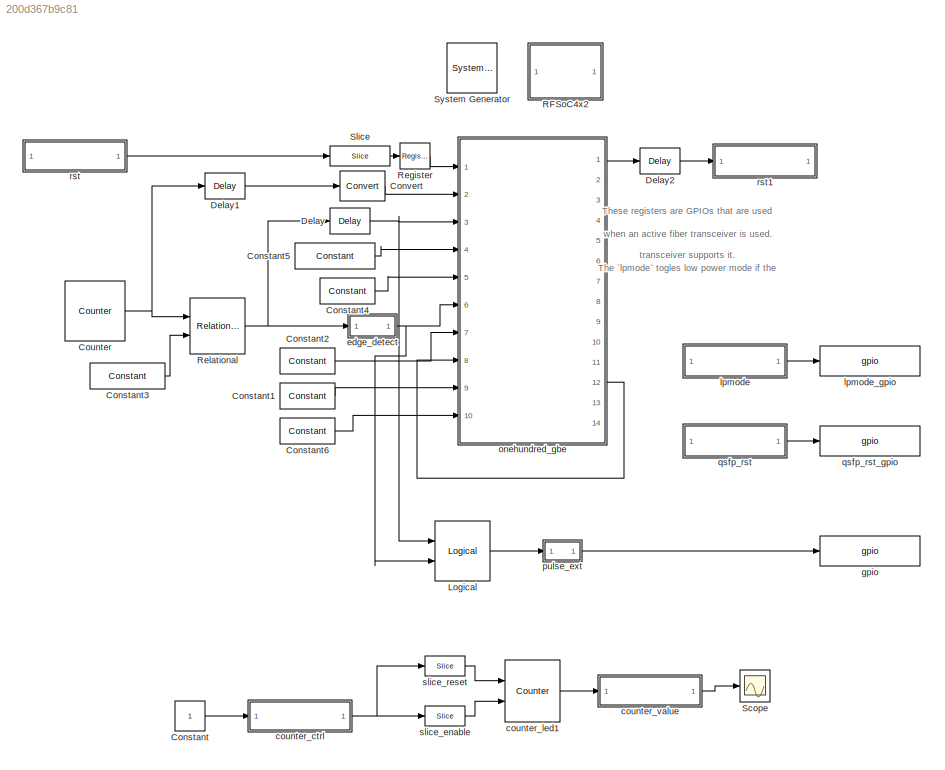
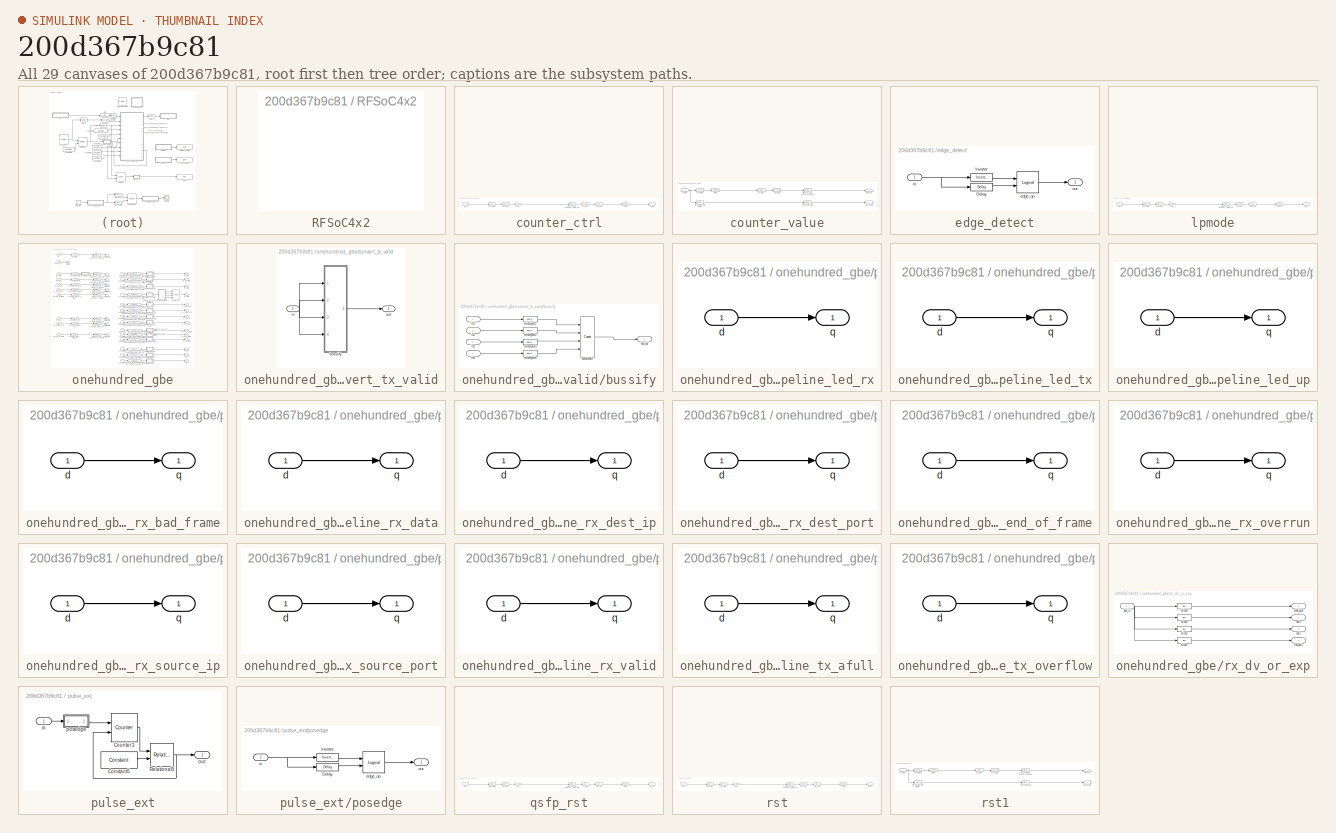
[diagram: thumbnail index - all 29 canvases of the model, root first then tree order]
MODEL slx_200d367b9c81
KIND model
CONFIG AbsTol = auto
CONFIG EnableMultiTasking = off
CONFIG FixedStep = auto
CONFIG MaxStep = auto
CONFIG MinStep = auto
CONFIG RelTol = 1e-3
CONFIG SampleTimeConstraint = Unconstrained
CONFIG SolverName = VariableStepAuto
CONFIG StartTime = 0.0
CONFIG StopTime = 10.0
BLOCK [Reference]  System Generator  REF=xbsIndex_r4/ System Generator
  AttributesFormatString = System\nGenerator
  Ports = []
  SourceBlock = xbsIndex_r4/ System Generator
  SourceType = Xilinx System Generator Block
  Tag = genX
  UserDataPersistent = on
BLOCK [Constant] Constant
BLOCK [Reference] Constant1  REF=xbsIndex_r4/Constant
  Ports = [0, 1]
  SourceBlock = xbsIndex_r4/Constant
  SourceType = Xilinx Constant Block Block
BLOCK [Reference] Constant2  REF=xbsIndex_r4/Constant
  Ports = [0, 1]
  SourceBlock = xbsIndex_r4/Constant
  SourceType = Xilinx Constant Block Block
BLOCK [Reference] Constant3  REF=xbsIndex_r4/Constant
  Ports = [0, 1]
  SourceBlock = xbsIndex_r4/Constant
  SourceType = Xilinx Constant Block Block
BLOCK [Reference] Constant4  REF=xbsIndex_r4/Constant
  Ports = [0, 1]
  SourceBlock = xbsIndex_r4/Constant
  SourceType = Xilinx Constant Block Block
BLOCK [Reference] Constant5  REF=xbsIndex_r4/Constant
  Ports = [0, 1]
  SourceBlock = xbsIndex_r4/Constant
  SourceType = Xilinx Constant Block Block
BLOCK [Reference] Constant6  REF=xbsIndex_r4/Constant
  Ports = [0, 1]
  SourceBlock = xbsIndex_r4/Constant
  SourceType = Xilinx Constant Block Block
BLOCK [Reference] Convert  REF=xbsIndex_r4/Convert
  Ports = [1, 1]
  SourceBlock = xbsIndex_r4/Convert
  SourceType = Xilinx Type Converter Block
BLOCK [Reference] Counter  REF=xbsIndex_r4/Counter
  Ports = [0, 1]
  SourceBlock = xbsIndex_r4/Counter
  SourceType = Xilinx Counter Block
BLOCK [Reference] Delay  REF=xbsIndex_r4/Delay
  Ports = [1, 1]
  SourceBlock = xbsIndex_r4/Delay
  SourceType = Xilinx Delay Block
BLOCK [Reference] Delay1  REF=xbsIndex_r4/Delay
  Ports = [1, 1]
  SourceBlock = xbsIndex_r4/Delay
  SourceType = Xilinx Delay Block
BLOCK [Reference] Delay2  REF=xbsIndex_r4/Delay
  Ports = [1, 1]
  SourceBlock = xbsIndex_r4/Delay
  SourceType = Xilinx Delay Block
BLOCK [Reference] Logical  REF=xbsIndex_r4/Logical
  Ports = [2, 1]
  SourceBlock = xbsIndex_r4/Logical
  SourceType = Xilinx Logical Block Block
BLOCK [SubSystem] RFSoC4x2
  AncestorBlock = xps_library/Platforms/ZCU216
  Ports = []
  RequestExecContextInheritance = off
  Tag = xps:xsg
BLOCK [Reference] Register  REF=xbsIndex_r4/Register
  Ports = [1, 1]
  SourceBlock = xbsIndex_r4/Register
  SourceType = Xilinx Register Block
BLOCK [Reference] Relational  REF=xbsIndex_r4/Relational
  Ports = [2, 1]
  SourceBlock = xbsIndex_r4/Relational
  SourceType = Xilinx Arithmetic Relational Operator Block
BLOCK [Scope] Scope
  Floating = off
  NumInputPorts = 1
  Ports = [1]
  ScopeSpecificationString = Simulink.scopes.TimeScopeBlockCfg('CurrentConfiguration', extmgr.ConfigurationSet(extmgr.Configuration('Core','General UI',true),extmgr.Configuration('Core','Source UI',true),extmgr.Configuration('Sources','WiredSimulink',true,'DataLoggingLimitDataPoints',true,'DataLoggingSaveFormat','Array','DataLoggingDecimation','1','DataLoggingDecimateData',true),extmgr.Configuration('Visuals','Time Domain',tr...<+126ch>
BLOCK [Reference] Slice  REF=xbsIndex_r4/Slice
  Ports = [1, 1]
  SourceBlock = xbsIndex_r4/Slice
  SourceType = Xilinx Bit Slice Extractor Block
BLOCK [SubSystem] counter_ctrl
  AncestorBlock = xps_library/Memory/software_register
  AttributesFormatString = 1input
  Ports = [1, 1]
  RequestExecContextInheritance = off
  Tag = xps:sw_reg
BLOCK [DataTypeConversion] counter_ctrl/convert1_1
  LockScale = on
  OutDataTypeStr = fixdt('ufix32_En0')
  RndMeth = Floor
  SaturateOnIntegerOverflow = off
BLOCK [DataTypeConversion] counter_ctrl/convert2_1
  ConvertRealWorld = Stored Integer (SI)
  LockScale = on
  OutDataTypeStr = fixdt('ufix32_En0')
  RndMeth = Floor
  SaturateOnIntegerOverflow = off
BLOCK [Gain] counter_ctrl/gain_1
  OutDataTypeStr = fixdt('ufix32_En0')
BLOCK [Outport] counter_ctrl/in_reg
  VectorParamsAs1DForOutWhenUnconnected = off
BLOCK [Reference] counter_ctrl/io_delay  REF=xbsIndex_r4/Delay
  Ports = [1, 1]
  SourceBlock = xbsIndex_r4/Delay
  SourceType = Xilinx Delay Block
BLOCK [Reference] counter_ctrl/reint1  REF=xbsIndex_r4/Reinterpret
  Ports = [1, 1]
  SourceBlock = xbsIndex_r4/Reinterpret
  SourceType = Xilinx Type Reinterpreter Block
BLOCK [Reference] counter_ctrl/rfsoc4x2_tut_onehundred_gbe_counter_ctrl_user_data_out  REF=xbsIndex_r4/Gateway In
  Ports = [1, 1]
  SourceBlock = xbsIndex_r4/Gateway In
  SourceType = Xilinx Gateway In Block
BLOCK [Inport] counter_ctrl/sim_1
BLOCK [Reference] counter_ctrl/slice_reg  REF=xbsIndex_r4/Slice
  Ports = [1, 1]
  SourceBlock = xbsIndex_r4/Slice
  SourceType = Xilinx Bit Slice Extractor Block
BLOCK [Reference] counter_led1  REF=xbsIndex_r4/Counter
  Ports = [2, 1]
  SourceBlock = xbsIndex_r4/Counter
  SourceType = Xilinx Counter Block
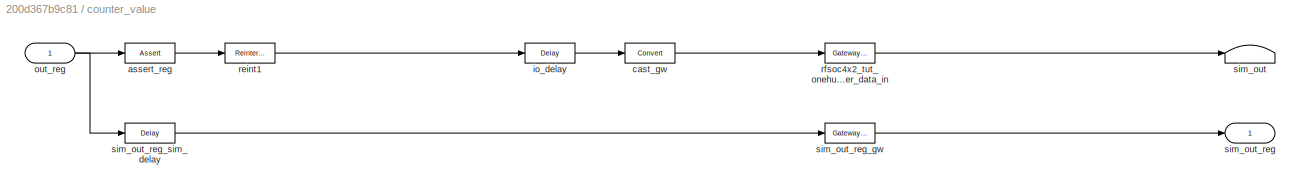
BLOCK [SubSystem] counter_value
  AncestorBlock = xps_library/Memory/software_register
  AttributesFormatString = 1output
  Ports = [1, 1]
  RequestExecContextInheritance = off
  Tag = xps:sw_reg
BLOCK [Reference] counter_value/assert_reg  REF=xbsIndex_r4/Assert
  Ports = [1, 1]
  SourceBlock = xbsIndex_r4/Assert
  SourceType = Xilinx Assert Block
BLOCK [Reference] counter_value/cast_gw  REF=xbsIndex_r4/Convert
  Ports = [1, 1]
  SourceBlock = xbsIndex_r4/Convert
  SourceType = Xilinx Type Converter Block
BLOCK [Reference] counter_value/io_delay  REF=xbsIndex_r4/Delay
  Ports = [1, 1]
  SourceBlock = xbsIndex_r4/Delay
  SourceType = Xilinx Delay Block
BLOCK [Inport] counter_value/out_reg
BLOCK [Reference] counter_value/reint1  REF=xbsIndex_r4/Reinterpret
  Ports = [1, 1]
  SourceBlock = xbsIndex_r4/Reinterpret
  SourceType = Xilinx Type Reinterpreter Block
BLOCK [Reference] counter_value/rfsoc4x2_tut_onehundred_gbe_counter_value_user_data_in  REF=xbsIndex_r4/Gateway Out
  Ports = [1, 1]
  SourceBlock = xbsIndex_r4/Gateway Out
  SourceType = Xilinx Gateway Out Block
BLOCK [Terminator] counter_value/sim_out
BLOCK [Outport] counter_value/sim_out_reg
  VectorParamsAs1DForOutWhenUnconnected = off
BLOCK [Reference] counter_value/sim_out_reg_gw  REF=xbsIndex_r4/Gateway Out
  Ports = [1, 1]
  SourceBlock = xbsIndex_r4/Gateway Out
  SourceType = Xilinx Gateway Out Block
BLOCK [Reference] counter_value/sim_out_reg_sim_delay  REF=xbsIndex_r4/Delay
  Ports = [1, 1]
  SourceBlock = xbsIndex_r4/Delay
  SourceType = Xilinx Delay Block
BLOCK [SubSystem] edge_detect
  AncestorBlock = casper_library_misc/edge_detect
  AttributesFormatString = falling edges\nactive high
  Ports = [1, 1]
  RequestExecContextInheritance = off
  UserDataPersistent = on
BLOCK [Reference] edge_detect/Delay  REF=xbsIndex_r4/Delay
  Ports = [1, 1]
  SourceBlock = xbsIndex_r4/Delay
  SourceType = Xilinx Delay Block
BLOCK [Reference] edge_detect/Inverter  REF=xbsIndex_r4/Inverter
  Ports = [1, 1]
  SourceBlock = xbsIndex_r4/Inverter
  SourceType = Xilinx Inverter Block
BLOCK [Reference] edge_detect/edge_op  REF=xbsIndex_r4/Logical
  Ports = [2, 1]
  SourceBlock = xbsIndex_r4/Logical
  SourceType = Xilinx Logical Block Block
BLOCK [Inport] edge_detect/in
BLOCK [Outport] edge_detect/out
  VectorParamsAs1DForOutWhenUnconnected = off
BLOCK [Reference] gpio  REF=xps_library/IO/gpio  (lib defined in mdl_00b5cec29cd0, mdl_02ab6ecaa3d1, +5 more)
  Ports = [1, 1]
  SourceBlock = xps_library/IO/gpio
  SourceProductName = CASPER XPS Blockset
  SourceType = gpio
  Tag = xps:gpio
BLOCK [SubSystem] lpmode
  AncestorBlock = xps_library/Memory/software_register
  AttributesFormatString = 1input:uf1.0 = 1 bits
  Ports = [1, 1]
  RequestExecContextInheritance = off
  Tag = xps:sw_reg
BLOCK [DataTypeConversion] lpmode/convert1_1
  LockScale = on
  OutDataTypeStr = fixdt('ufix1_En0')
  RndMeth = Floor
  SaturateOnIntegerOverflow = off
BLOCK [DataTypeConversion] lpmode/convert2_1
  ConvertRealWorld = Stored Integer (SI)
  LockScale = on
  OutDataTypeStr = fixdt('ufix1_En0')
  RndMeth = Floor
  SaturateOnIntegerOverflow = off
BLOCK [Gain] lpmode/gain_1
  OutDataTypeStr = fixdt('ufix32_En0')
BLOCK [Outport] lpmode/in_reg
BLOCK [Reference] lpmode/io_delay  REF=xbsIndex_r4/Delay
  Ports = [1, 1]
  SourceBlock = xbsIndex_r4/Delay
  SourceType = Xilinx Delay Block
BLOCK [Reference] lpmode/reint1  REF=xbsIndex_r4/Reinterpret
  Ports = [1, 1]
  SourceBlock = xbsIndex_r4/Reinterpret
  SourceType = Xilinx Type Reinterpreter Block
BLOCK [Reference] lpmode/rfsoc4x2_tut_onehundred_gbe_lpmode_user_data_out  REF=xbsIndex_r4/Gateway In
  Ports = [1, 1]
  SourceBlock = xbsIndex_r4/Gateway In
  SourceType = Xilinx Gateway In Block
BLOCK [Inport] lpmode/sim_1
BLOCK [Reference] lpmode/slice_reg  REF=xbsIndex_r4/Slice
  Ports = [1, 1]
  SourceBlock = xbsIndex_r4/Slice
  SourceType = Xilinx Bit Slice Extractor Block
BLOCK [Reference] lpmode_gpio  REF=xps_library/IO/gpio  (lib defined in mdl_00b5cec29cd0, mdl_02ab6ecaa3d1, +5 more)
  Ports = [1, 1]
  SourceBlock = xps_library/IO/gpio
  SourceProductName = CASPER XPS Blockset
  SourceType = gpio
  Tag = xps:gpio
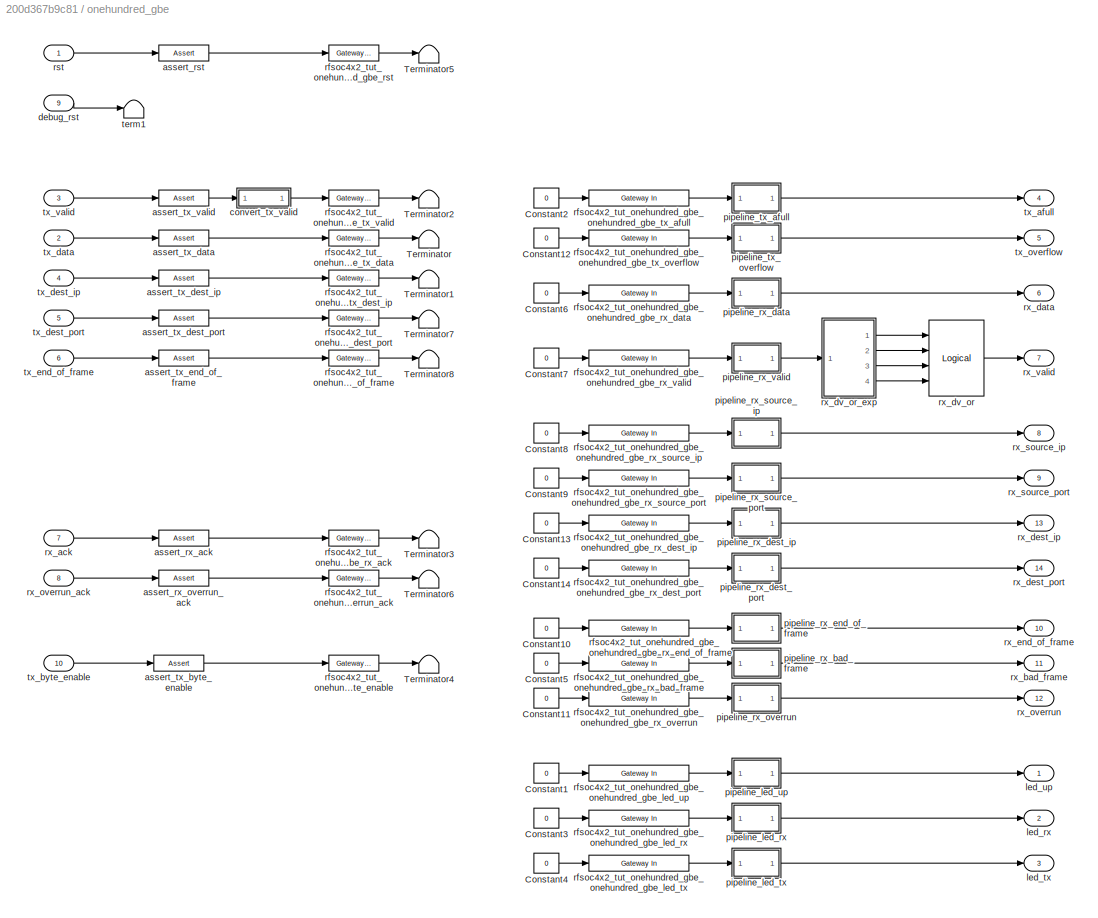
BLOCK [SubSystem] onehundred_gbe
  AncestorBlock = xps_library/IO/onehundred_gbe
  AttributesFormatString = incoming_latency=0
  Ports = [10, 14]
  RequestExecContextInheritance = off
  Tag = xps:onehundred_gbe
BLOCK [Constant] onehundred_gbe/Constant1
  Value = 0
BLOCK [Constant] onehundred_gbe/Constant10
  Value = 0
BLOCK [Constant] onehundred_gbe/Constant11
  Value = 0
BLOCK [Constant] onehundred_gbe/Constant12
  Value = 0
BLOCK [Constant] onehundred_gbe/Constant13
  Value = 0
BLOCK [Constant] onehundred_gbe/Constant14
  Value = 0
BLOCK [Constant] onehundred_gbe/Constant2
  Value = 0
BLOCK [Constant] onehundred_gbe/Constant3
  Value = 0
BLOCK [Constant] onehundred_gbe/Constant4
  Value = 0
BLOCK [Constant] onehundred_gbe/Constant5
  Value = 0
BLOCK [Constant] onehundred_gbe/Constant6
  Value = 0
BLOCK [Constant] onehundred_gbe/Constant7
  Value = 0
BLOCK [Constant] onehundred_gbe/Constant8
  Value = 0
BLOCK [Constant] onehundred_gbe/Constant9
  Value = 0
BLOCK [Terminator] onehundred_gbe/Terminator
BLOCK [Terminator] onehundred_gbe/Terminator1
BLOCK [Terminator] onehundred_gbe/Terminator2
BLOCK [Terminator] onehundred_gbe/Terminator3
BLOCK [Terminator] onehundred_gbe/Terminator4
BLOCK [Terminator] onehundred_gbe/Terminator5
BLOCK [Terminator] onehundred_gbe/Terminator6
BLOCK [Terminator] onehundred_gbe/Terminator7
BLOCK [Terminator] onehundred_gbe/Terminator8
BLOCK [Reference] onehundred_gbe/assert_rst  REF=xbsIndex_r4/Assert
  Ports = [1, 1]
  SourceBlock = xbsIndex_r4/Assert
  SourceType = Xilinx Assert Block
BLOCK [Reference] onehundred_gbe/assert_rx_ack  REF=xbsIndex_r4/Assert
  Ports = [1, 1]
  SourceBlock = xbsIndex_r4/Assert
  SourceType = Xilinx Assert Block
BLOCK [Reference] onehundred_gbe/assert_rx_overrun_ack  REF=xbsIndex_r4/Assert
  Ports = [1, 1]
  SourceBlock = xbsIndex_r4/Assert
  SourceType = Xilinx Assert Block
BLOCK [Reference] onehundred_gbe/assert_tx_byte_enable  REF=xbsIndex_r4/Assert
  Ports = [1, 1]
  SourceBlock = xbsIndex_r4/Assert
  SourceType = Xilinx Assert Block
BLOCK [Reference] onehundred_gbe/assert_tx_data  REF=xbsIndex_r4/Assert
  Ports = [1, 1]
  SourceBlock = xbsIndex_r4/Assert
  SourceType = Xilinx Assert Block
BLOCK [Reference] onehundred_gbe/assert_tx_dest_ip  REF=xbsIndex_r4/Assert
  Ports = [1, 1]
  SourceBlock = xbsIndex_r4/Assert
  SourceType = Xilinx Assert Block
BLOCK [Reference] onehundred_gbe/assert_tx_dest_port  REF=xbsIndex_r4/Assert
  Ports = [1, 1]
  SourceBlock = xbsIndex_r4/Assert
  SourceType = Xilinx Assert Block
BLOCK [Reference] onehundred_gbe/assert_tx_end_of_frame  REF=xbsIndex_r4/Assert
  Ports = [1, 1]
  SourceBlock = xbsIndex_r4/Assert
  SourceType = Xilinx Assert Block
BLOCK [Reference] onehundred_gbe/assert_tx_valid  REF=xbsIndex_r4/Assert
  Ports = [1, 1]
  SourceBlock = xbsIndex_r4/Assert
  SourceType = Xilinx Assert Block
BLOCK [SubSystem] onehundred_gbe/convert_tx_valid
  AncestorBlock = casper_library_bus/bus_replicate
  Ports = [1, 1]
  RequestExecContextInheritance = off
  UserDataPersistent = on
BLOCK [SubSystem] onehundred_gbe/convert_tx_valid/bussify
  AncestorBlock = casper_library_flow_control/bus_create
  Ports = [4, 1]
  RequestExecContextInheritance = off
  UserDataPersistent = on
BLOCK [Outport] onehundred_gbe/convert_tx_valid/bussify/bus_out
  VectorParamsAs1DForOutWhenUnconnected = off
BLOCK [Reference] onehundred_gbe/convert_tx_valid/bussify/concatenate  REF=xbsIndex_r4/Concat
  Ports = [4, 1]
  SourceBlock = xbsIndex_r4/Concat
  SourceType = Xilinx Bus Concatenator Block
BLOCK [Inport] onehundred_gbe/convert_tx_valid/bussify/in1
BLOCK [Inport] onehundred_gbe/convert_tx_valid/bussify/in2
  Port = 2
BLOCK [Inport] onehundred_gbe/convert_tx_valid/bussify/in3
  Port = 3
BLOCK [Inport] onehundred_gbe/convert_tx_valid/bussify/in4
  Port = 4
BLOCK [Reference] onehundred_gbe/convert_tx_valid/bussify/reinterpret1  REF=xbsIndex_r4/Reinterpret
  Ports = [1, 1]
  SourceBlock = xbsIndex_r4/Reinterpret
  SourceType = Xilinx Type Reinterpreter Block
BLOCK [Reference] onehundred_gbe/convert_tx_valid/bussify/reinterpret2  REF=xbsIndex_r4/Reinterpret
  Ports = [1, 1]
  SourceBlock = xbsIndex_r4/Reinterpret
  SourceType = Xilinx Type Reinterpreter Block
BLOCK [Reference] onehundred_gbe/convert_tx_valid/bussify/reinterpret3  REF=xbsIndex_r4/Reinterpret
  Ports = [1, 1]
  SourceBlock = xbsIndex_r4/Reinterpret
  SourceType = Xilinx Type Reinterpreter Block
BLOCK [Reference] onehundred_gbe/convert_tx_valid/bussify/reinterpret4  REF=xbsIndex_r4/Reinterpret
  Ports = [1, 1]
  SourceBlock = xbsIndex_r4/Reinterpret
  SourceType = Xilinx Type Reinterpreter Block
BLOCK [Inport] onehundred_gbe/convert_tx_valid/in
BLOCK [Outport] onehundred_gbe/convert_tx_valid/out
  VectorParamsAs1DForOutWhenUnconnected = off
BLOCK [Inport] onehundred_gbe/debug_rst
  Port = 9
BLOCK [Outport] onehundred_gbe/led_rx
  Port = 2
  VectorParamsAs1DForOutWhenUnconnected = off
BLOCK [Outport] onehundred_gbe/led_tx
  Port = 3
  VectorParamsAs1DForOutWhenUnconnected = off
BLOCK [Outport] onehundred_gbe/led_up
  VectorParamsAs1DForOutWhenUnconnected = off
BLOCK [SubSystem] onehundred_gbe/pipeline_led_rx
  AncestorBlock = casper_library_delays/pipeline
  AttributesFormatString = Latency = %<latency>
  Ports = [1, 1]
  RequestExecContextInheritance = off
  UserDataPersistent = on
BLOCK [Inport] onehundred_gbe/pipeline_led_rx/d
BLOCK [Outport] onehundred_gbe/pipeline_led_rx/q
  VectorParamsAs1DForOutWhenUnconnected = off
BLOCK [SubSystem] onehundred_gbe/pipeline_led_tx
  AncestorBlock = casper_library_delays/pipeline
  AttributesFormatString = Latency = %<latency>
  Ports = [1, 1]
  RequestExecContextInheritance = off
  UserDataPersistent = on
BLOCK [Inport] onehundred_gbe/pipeline_led_tx/d
BLOCK [Outport] onehundred_gbe/pipeline_led_tx/q
  VectorParamsAs1DForOutWhenUnconnected = off
BLOCK [SubSystem] onehundred_gbe/pipeline_led_up
  AncestorBlock = casper_library_delays/pipeline
  AttributesFormatString = Latency = %<latency>
  Ports = [1, 1]
  RequestExecContextInheritance = off
  UserDataPersistent = on
BLOCK [Inport] onehundred_gbe/pipeline_led_up/d
BLOCK [Outport] onehundred_gbe/pipeline_led_up/q
  VectorParamsAs1DForOutWhenUnconnected = off
BLOCK [SubSystem] onehundred_gbe/pipeline_rx_bad_frame
  AncestorBlock = casper_library_delays/pipeline
  AttributesFormatString = Latency = %<latency>
  Ports = [1, 1]
  RequestExecContextInheritance = off
  UserDataPersistent = on
BLOCK [Inport] onehundred_gbe/pipeline_rx_bad_frame/d
BLOCK [Outport] onehundred_gbe/pipeline_rx_bad_frame/q
  VectorParamsAs1DForOutWhenUnconnected = off
BLOCK [SubSystem] onehundred_gbe/pipeline_rx_data
  AncestorBlock = casper_library_delays/pipeline
  AttributesFormatString = Latency = %<latency>
  Ports = [1, 1]
  RequestExecContextInheritance = off
  UserDataPersistent = on
BLOCK [Inport] onehundred_gbe/pipeline_rx_data/d
BLOCK [Outport] onehundred_gbe/pipeline_rx_data/q
  VectorParamsAs1DForOutWhenUnconnected = off
BLOCK [SubSystem] onehundred_gbe/pipeline_rx_dest_ip
  AncestorBlock = casper_library_delays/pipeline
  AttributesFormatString = Latency = %<latency>
  Ports = [1, 1]
  RequestExecContextInheritance = off
  UserDataPersistent = on
BLOCK [Inport] onehundred_gbe/pipeline_rx_dest_ip/d
BLOCK [Outport] onehundred_gbe/pipeline_rx_dest_ip/q
  VectorParamsAs1DForOutWhenUnconnected = off
BLOCK [SubSystem] onehundred_gbe/pipeline_rx_dest_port
  AncestorBlock = casper_library_delays/pipeline
  AttributesFormatString = Latency = %<latency>
  Ports = [1, 1]
  RequestExecContextInheritance = off
  UserDataPersistent = on
BLOCK [Inport] onehundred_gbe/pipeline_rx_dest_port/d
BLOCK [Outport] onehundred_gbe/pipeline_rx_dest_port/q
  VectorParamsAs1DForOutWhenUnconnected = off
BLOCK [SubSystem] onehundred_gbe/pipeline_rx_end_of_frame
  AncestorBlock = casper_library_delays/pipeline
  AttributesFormatString = Latency = %<latency>
  Ports = [1, 1]
  RequestExecContextInheritance = off
  UserDataPersistent = on
BLOCK [Inport] onehundred_gbe/pipeline_rx_end_of_frame/d
BLOCK [Outport] onehundred_gbe/pipeline_rx_end_of_frame/q
  VectorParamsAs1DForOutWhenUnconnected = off
BLOCK [SubSystem] onehundred_gbe/pipeline_rx_overrun
  AncestorBlock = casper_library_delays/pipeline
  AttributesFormatString = Latency = %<latency>
  Ports = [1, 1]
  RequestExecContextInheritance = off
  UserDataPersistent = on
BLOCK [Inport] onehundred_gbe/pipeline_rx_overrun/d
BLOCK [Outport] onehundred_gbe/pipeline_rx_overrun/q
  VectorParamsAs1DForOutWhenUnconnected = off
BLOCK [SubSystem] onehundred_gbe/pipeline_rx_source_ip
  AncestorBlock = casper_library_delays/pipeline
  AttributesFormatString = Latency = %<latency>
  Ports = [1, 1]
  RequestExecContextInheritance = off
  UserDataPersistent = on
BLOCK [Inport] onehundred_gbe/pipeline_rx_source_ip/d
BLOCK [Outport] onehundred_gbe/pipeline_rx_source_ip/q
  VectorParamsAs1DForOutWhenUnconnected = off
BLOCK [SubSystem] onehundred_gbe/pipeline_rx_source_port
  AncestorBlock = casper_library_delays/pipeline
  AttributesFormatString = Latency = %<latency>
  Ports = [1, 1]
  RequestExecContextInheritance = off
  UserDataPersistent = on
BLOCK [Inport] onehundred_gbe/pipeline_rx_source_port/d
BLOCK [Outport] onehundred_gbe/pipeline_rx_source_port/q
  VectorParamsAs1DForOutWhenUnconnected = off
BLOCK [SubSystem] onehundred_gbe/pipeline_rx_valid
  AncestorBlock = casper_library_delays/pipeline
  AttributesFormatString = Latency = %<latency>
  Ports = [1, 1]
  RequestExecContextInheritance = off
  UserDataPersistent = on
BLOCK [Inport] onehundred_gbe/pipeline_rx_valid/d
BLOCK [Outport] onehundred_gbe/pipeline_rx_valid/q
  VectorParamsAs1DForOutWhenUnconnected = off
BLOCK [SubSystem] onehundred_gbe/pipeline_tx_afull
  AncestorBlock = casper_library_delays/pipeline
  AttributesFormatString = Latency = %<latency>
  Ports = [1, 1]
  RequestExecContextInheritance = off
  UserDataPersistent = on
BLOCK [Inport] onehundred_gbe/pipeline_tx_afull/d
BLOCK [Outport] onehundred_gbe/pipeline_tx_afull/q
  VectorParamsAs1DForOutWhenUnconnected = off
BLOCK [SubSystem] onehundred_gbe/pipeline_tx_overflow
  AncestorBlock = casper_library_delays/pipeline
  AttributesFormatString = Latency = %<latency>
  Ports = [1, 1]
  RequestExecContextInheritance = off
  UserDataPersistent = on
BLOCK [Inport] onehundred_gbe/pipeline_tx_overflow/d
BLOCK [Outport] onehundred_gbe/pipeline_tx_overflow/q
  VectorParamsAs1DForOutWhenUnconnected = off
BLOCK [Reference] onehundred_gbe/rfsoc4x2_tut_onehundred_gbe_onehundred_gbe_led_rx  REF=xbsIndex_r4/Gateway In
  Ports = [1, 1]
  SourceBlock = xbsIndex_r4/Gateway In
  SourceType = Xilinx Gateway In Block
BLOCK [Reference] onehundred_gbe/rfsoc4x2_tut_onehundred_gbe_onehundred_gbe_led_tx  REF=xbsIndex_r4/Gateway In
  Ports = [1, 1]
  SourceBlock = xbsIndex_r4/Gateway In
  SourceType = Xilinx Gateway In Block
BLOCK [Reference] onehundred_gbe/rfsoc4x2_tut_onehundred_gbe_onehundred_gbe_led_up  REF=xbsIndex_r4/Gateway In
  Ports = [1, 1]
  SourceBlock = xbsIndex_r4/Gateway In
  SourceType = Xilinx Gateway In Block
BLOCK [Reference] onehundred_gbe/rfsoc4x2_tut_onehundred_gbe_onehundred_gbe_rst  REF=xbsIndex_r4/Gateway Out
  Ports = [1, 1]
  SourceBlock = xbsIndex_r4/Gateway Out
  SourceType = Xilinx Gateway Out Block
BLOCK [Reference] onehundred_gbe/rfsoc4x2_tut_onehundred_gbe_onehundred_gbe_rx_ack  REF=xbsIndex_r4/Gateway Out
  Ports = [1, 1]
  SourceBlock = xbsIndex_r4/Gateway Out
  SourceType = Xilinx Gateway Out Block
BLOCK [Reference] onehundred_gbe/rfsoc4x2_tut_onehundred_gbe_onehundred_gbe_rx_bad_frame  REF=xbsIndex_r4/Gateway In
  Ports = [1, 1]
  SourceBlock = xbsIndex_r4/Gateway In
  SourceType = Xilinx Gateway In Block
BLOCK [Reference] onehundred_gbe/rfsoc4x2_tut_onehundred_gbe_onehundred_gbe_rx_data  REF=xbsIndex_r4/Gateway In
  Ports = [1, 1]
  SourceBlock = xbsIndex_r4/Gateway In
  SourceType = Xilinx Gateway In Block
BLOCK [Reference] onehundred_gbe/rfsoc4x2_tut_onehundred_gbe_onehundred_gbe_rx_dest_ip  REF=xbsIndex_r4/Gateway In
  Ports = [1, 1]
  SourceBlock = xbsIndex_r4/Gateway In
  SourceType = Xilinx Gateway In Block
BLOCK [Reference] onehundred_gbe/rfsoc4x2_tut_onehundred_gbe_onehundred_gbe_rx_dest_port  REF=xbsIndex_r4/Gateway In
  Ports = [1, 1]
  SourceBlock = xbsIndex_r4/Gateway In
  SourceType = Xilinx Gateway In Block
BLOCK [Reference] onehundred_gbe/rfsoc4x2_tut_onehundred_gbe_onehundred_gbe_rx_end_of_frame  REF=xbsIndex_r4/Gateway In
  Ports = [1, 1]
  SourceBlock = xbsIndex_r4/Gateway In
  SourceType = Xilinx Gateway In Block
BLOCK [Reference] onehundred_gbe/rfsoc4x2_tut_onehundred_gbe_onehundred_gbe_rx_overrun  REF=xbsIndex_r4/Gateway In
  Ports = [1, 1]
  SourceBlock = xbsIndex_r4/Gateway In
  SourceType = Xilinx Gateway In Block
BLOCK [Reference] onehundred_gbe/rfsoc4x2_tut_onehundred_gbe_onehundred_gbe_rx_overrun_ack  REF=xbsIndex_r4/Gateway Out
  Ports = [1, 1]
  SourceBlock = xbsIndex_r4/Gateway Out
  SourceType = Xilinx Gateway Out Block
BLOCK [Reference] onehundred_gbe/rfsoc4x2_tut_onehundred_gbe_onehundred_gbe_rx_source_ip  REF=xbsIndex_r4/Gateway In
  Ports = [1, 1]
  SourceBlock = xbsIndex_r4/Gateway In
  SourceType = Xilinx Gateway In Block
BLOCK [Reference] onehundred_gbe/rfsoc4x2_tut_onehundred_gbe_onehundred_gbe_rx_source_port  REF=xbsIndex_r4/Gateway In
  Ports = [1, 1]
  SourceBlock = xbsIndex_r4/Gateway In
  SourceType = Xilinx Gateway In Block
BLOCK [Reference] onehundred_gbe/rfsoc4x2_tut_onehundred_gbe_onehundred_gbe_rx_valid  REF=xbsIndex_r4/Gateway In
  Ports = [1, 1]
  SourceBlock = xbsIndex_r4/Gateway In
  SourceType = Xilinx Gateway In Block
BLOCK [Reference] onehundred_gbe/rfsoc4x2_tut_onehundred_gbe_onehundred_gbe_tx_afull  REF=xbsIndex_r4/Gateway In
  Ports = [1, 1]
  SourceBlock = xbsIndex_r4/Gateway In
  SourceType = Xilinx Gateway In Block
BLOCK [Reference] onehundred_gbe/rfsoc4x2_tut_onehundred_gbe_onehundred_gbe_tx_byte_enable  REF=xbsIndex_r4/Gateway Out
  Ports = [1, 1]
  SourceBlock = xbsIndex_r4/Gateway Out
  SourceType = Xilinx Gateway Out Block
BLOCK [Reference] onehundred_gbe/rfsoc4x2_tut_onehundred_gbe_onehundred_gbe_tx_data  REF=xbsIndex_r4/Gateway Out
  Ports = [1, 1]
  SourceBlock = xbsIndex_r4/Gateway Out
  SourceType = Xilinx Gateway Out Block
BLOCK [Reference] onehundred_gbe/rfsoc4x2_tut_onehundred_gbe_onehundred_gbe_tx_dest_ip  REF=xbsIndex_r4/Gateway Out
  Ports = [1, 1]
  SourceBlock = xbsIndex_r4/Gateway Out
  SourceType = Xilinx Gateway Out Block
BLOCK [Reference] onehundred_gbe/rfsoc4x2_tut_onehundred_gbe_onehundred_gbe_tx_dest_port  REF=xbsIndex_r4/Gateway Out
  Ports = [1, 1]
  SourceBlock = xbsIndex_r4/Gateway Out
  SourceType = Xilinx Gateway Out Block
BLOCK [Reference] onehundred_gbe/rfsoc4x2_tut_onehundred_gbe_onehundred_gbe_tx_end_of_frame  REF=xbsIndex_r4/Gateway Out
  Ports = [1, 1]
  SourceBlock = xbsIndex_r4/Gateway Out
  SourceType = Xilinx Gateway Out Block
BLOCK [Reference] onehundred_gbe/rfsoc4x2_tut_onehundred_gbe_onehundred_gbe_tx_overflow  REF=xbsIndex_r4/Gateway In
  Ports = [1, 1]
  SourceBlock = xbsIndex_r4/Gateway In
  SourceType = Xilinx Gateway In Block
BLOCK [Reference] onehundred_gbe/rfsoc4x2_tut_onehundred_gbe_onehundred_gbe_tx_valid  REF=xbsIndex_r4/Gateway Out
  Ports = [1, 1]
  SourceBlock = xbsIndex_r4/Gateway Out
  SourceType = Xilinx Gateway Out Block
BLOCK [Inport] onehundred_gbe/rst
BLOCK [Inport] onehundred_gbe/rx_ack
  Port = 7
BLOCK [Outport] onehundred_gbe/rx_bad_frame
  Port = 11
  VectorParamsAs1DForOutWhenUnconnected = off
BLOCK [Outport] onehundred_gbe/rx_data
  Port = 6
  VectorParamsAs1DForOutWhenUnconnected = off
BLOCK [Outport] onehundred_gbe/rx_dest_ip
  Port = 13
  VectorParamsAs1DForOutWhenUnconnected = off
BLOCK [Outport] onehundred_gbe/rx_dest_port
  Port = 14
  VectorParamsAs1DForOutWhenUnconnected = off
BLOCK [Reference] onehundred_gbe/rx_dv_or  REF=xbsIndex_r4/Logical
  Ports = [4, 1]
  SourceBlock = xbsIndex_r4/Logical
  SourceType = Xilinx Logical Block Block
BLOCK [SubSystem] onehundred_gbe/rx_dv_or_exp
  AncestorBlock = casper_library_flow_control/bus_expand
  AttributesFormatString = 4 outputs
  Ports = [1, 4]
  RequestExecContextInheritance = off
  UserDataPersistent = on
BLOCK [Inport] onehundred_gbe/rx_dv_or_exp/bus_in
BLOCK [Outport] onehundred_gbe/rx_dv_or_exp/lsb_out1
  Port = 4
  VectorParamsAs1DForOutWhenUnconnected = off
BLOCK [Outport] onehundred_gbe/rx_dv_or_exp/msb_out4
  VectorParamsAs1DForOutWhenUnconnected = off
BLOCK [Outport] onehundred_gbe/rx_dv_or_exp/out2
  Port = 3
  VectorParamsAs1DForOutWhenUnconnected = off
BLOCK [Outport] onehundred_gbe/rx_dv_or_exp/out3
  Port = 2
  VectorParamsAs1DForOutWhenUnconnected = off
BLOCK [Reference] onehundred_gbe/rx_dv_or_exp/slice1  REF=xbsIndex_r4/Slice
  Ports = [1, 1]
  SourceBlock = xbsIndex_r4/Slice
  SourceType = Xilinx Bit Slice Extractor Block
BLOCK [Reference] onehundred_gbe/rx_dv_or_exp/slice2  REF=xbsIndex_r4/Slice
  Ports = [1, 1]
  SourceBlock = xbsIndex_r4/Slice
  SourceType = Xilinx Bit Slice Extractor Block
BLOCK [Reference] onehundred_gbe/rx_dv_or_exp/slice3  REF=xbsIndex_r4/Slice
  Ports = [1, 1]
  SourceBlock = xbsIndex_r4/Slice
  SourceType = Xilinx Bit Slice Extractor Block
BLOCK [Reference] onehundred_gbe/rx_dv_or_exp/slice4  REF=xbsIndex_r4/Slice
  Ports = [1, 1]
  SourceBlock = xbsIndex_r4/Slice
  SourceType = Xilinx Bit Slice Extractor Block
BLOCK [Outport] onehundred_gbe/rx_end_of_frame
  Port = 10
  VectorParamsAs1DForOutWhenUnconnected = off
BLOCK [Outport] onehundred_gbe/rx_overrun
  Port = 12
  VectorParamsAs1DForOutWhenUnconnected = off
BLOCK [Inport] onehundred_gbe/rx_overrun_ack
  Port = 8
BLOCK [Outport] onehundred_gbe/rx_source_ip
  Port = 8
  VectorParamsAs1DForOutWhenUnconnected = off
BLOCK [Outport] onehundred_gbe/rx_source_port
  Port = 9
  VectorParamsAs1DForOutWhenUnconnected = off
BLOCK [Outport] onehundred_gbe/rx_valid
  Port = 7
  VectorParamsAs1DForOutWhenUnconnected = off
BLOCK [Terminator] onehundred_gbe/term1
BLOCK [Outport] onehundred_gbe/tx_afull
  Port = 4
  VectorParamsAs1DForOutWhenUnconnected = off
BLOCK [Inport] onehundred_gbe/tx_byte_enable
  Port = 10
BLOCK [Inport] onehundred_gbe/tx_data
  Port = 2
BLOCK [Inport] onehundred_gbe/tx_dest_ip
  Port = 4
BLOCK [Inport] onehundred_gbe/tx_dest_port
  Port = 5
BLOCK [Inport] onehundred_gbe/tx_end_of_frame
  Port = 6
BLOCK [Outport] onehundred_gbe/tx_overflow
  Port = 5
  VectorParamsAs1DForOutWhenUnconnected = off
BLOCK [Inport] onehundred_gbe/tx_valid
  Port = 3
BLOCK [SubSystem] pulse_ext
  AncestorBlock = casper_library_misc/pulse_ext
  Ports = [1, 1]
  RequestExecContextInheritance = off
BLOCK [Reference] pulse_ext/Constant5  REF=xbsIndex_r4/Constant
  Ports = [0, 1]
  SourceBlock = xbsIndex_r4/Constant
  SourceType = Xilinx Constant Block Block
BLOCK [Reference] pulse_ext/Counter3  REF=xbsIndex_r4/Counter
  Ports = [2, 1]
  SourceBlock = xbsIndex_r4/Counter
  SourceType = Xilinx Counter Block
BLOCK [Reference] pulse_ext/Relational5  REF=xbsIndex_r4/Relational
  Ports = [2, 1]
  SourceBlock = xbsIndex_r4/Relational
  SourceType = Xilinx Arithmetic Relational Operator Block
BLOCK [Inport] pulse_ext/in
BLOCK [Outport] pulse_ext/out
  VectorParamsAs1DForOutWhenUnconnected = off
BLOCK [SubSystem] pulse_ext/posedge
  AncestorBlock = casper_library_misc/edge_detect
  AttributesFormatString = rising edges\nactive high
  Ports = [1, 1]
  RequestExecContextInheritance = off
  UserDataPersistent = on
BLOCK [Reference] pulse_ext/posedge/Delay  REF=xbsIndex_r4/Delay
  Ports = [1, 1]
  SourceBlock = xbsIndex_r4/Delay
  SourceType = Xilinx Delay Block
BLOCK [Reference] pulse_ext/posedge/Inverter  REF=xbsIndex_r4/Inverter
  Ports = [1, 1]
  SourceBlock = xbsIndex_r4/Inverter
  SourceType = Xilinx Inverter Block
BLOCK [Reference] pulse_ext/posedge/edge_op  REF=xbsIndex_r4/Logical
  Ports = [2, 1]
  SourceBlock = xbsIndex_r4/Logical
  SourceType = Xilinx Logical Block Block
BLOCK [Inport] pulse_ext/posedge/in
BLOCK [Outport] pulse_ext/posedge/out
  VectorParamsAs1DForOutWhenUnconnected = off
BLOCK [SubSystem] qsfp_rst
  AncestorBlock = xps_library/Memory/software_register
  AttributesFormatString = 1input:uf1.0 = 1 bits
  Ports = [1, 1]
  RequestExecContextInheritance = off
  Tag = xps:sw_reg
BLOCK [DataTypeConversion] qsfp_rst/convert1_1
  LockScale = on
  OutDataTypeStr = fixdt('ufix1_En0')
  RndMeth = Floor
  SaturateOnIntegerOverflow = off
BLOCK [DataTypeConversion] qsfp_rst/convert2_1
  ConvertRealWorld = Stored Integer (SI)
  LockScale = on
  OutDataTypeStr = fixdt('ufix1_En0')
  RndMeth = Floor
  SaturateOnIntegerOverflow = off
BLOCK [Gain] qsfp_rst/gain_1
  OutDataTypeStr = fixdt('ufix32_En0')
BLOCK [Outport] qsfp_rst/in_reg
BLOCK [Reference] qsfp_rst/io_delay  REF=xbsIndex_r4/Delay
  Ports = [1, 1]
  SourceBlock = xbsIndex_r4/Delay
  SourceType = Xilinx Delay Block
BLOCK [Reference] qsfp_rst/reint1  REF=xbsIndex_r4/Reinterpret
  Ports = [1, 1]
  SourceBlock = xbsIndex_r4/Reinterpret
  SourceType = Xilinx Type Reinterpreter Block
BLOCK [Reference] qsfp_rst/rfsoc4x2_tut_onehundred_gbe_qsfp_rst_user_data_out  REF=xbsIndex_r4/Gateway In
  Ports = [1, 1]
  SourceBlock = xbsIndex_r4/Gateway In
  SourceType = Xilinx Gateway In Block
BLOCK [Inport] qsfp_rst/sim_1
BLOCK [Reference] qsfp_rst/slice_reg  REF=xbsIndex_r4/Slice
  Ports = [1, 1]
  SourceBlock = xbsIndex_r4/Slice
  SourceType = Xilinx Bit Slice Extractor Block
BLOCK [Reference] qsfp_rst_gpio  REF=xps_library/IO/gpio  (lib defined in mdl_00b5cec29cd0, mdl_02ab6ecaa3d1, +5 more)
  Ports = [1, 1]
  SourceBlock = xps_library/IO/gpio
  SourceProductName = CASPER XPS Blockset
  SourceType = gpio
  Tag = xps:gpio
BLOCK [SubSystem] rst
  AncestorBlock = xps_library/Memory/software_register
  AttributesFormatString = 1input:uf32.0 = 32 bits
  Ports = [1, 1]
  RequestExecContextInheritance = off
  Tag = xps:sw_reg
BLOCK [DataTypeConversion] rst/convert1_1
  LockScale = on
  OutDataTypeStr = fixdt('ufix32_En0')
  RndMeth = Floor
  SaturateOnIntegerOverflow = off
BLOCK [DataTypeConversion] rst/convert2_1
  ConvertRealWorld = Stored Integer (SI)
  LockScale = on
  OutDataTypeStr = fixdt('ufix32_En0')
  RndMeth = Floor
  SaturateOnIntegerOverflow = off
BLOCK [Gain] rst/gain_1
  OutDataTypeStr = fixdt('ufix32_En0')
BLOCK [Outport] rst/in_reg
  VectorParamsAs1DForOutWhenUnconnected = off
BLOCK [Reference] rst/io_delay  REF=xbsIndex_r4/Delay
  Ports = [1, 1]
  SourceBlock = xbsIndex_r4/Delay
  SourceType = Xilinx Delay Block
BLOCK [Reference] rst/reint1  REF=xbsIndex_r4/Reinterpret
  Ports = [1, 1]
  SourceBlock = xbsIndex_r4/Reinterpret
  SourceType = Xilinx Type Reinterpreter Block
BLOCK [Reference] rst/rfsoc4x2_tut_onehundred_gbe_rst_user_data_out  REF=xbsIndex_r4/Gateway In
  Ports = [1, 1]
  SourceBlock = xbsIndex_r4/Gateway In
  SourceType = Xilinx Gateway In Block
BLOCK [Inport] rst/sim_1
BLOCK [Reference] rst/slice_reg  REF=xbsIndex_r4/Slice
  Ports = [1, 1]
  SourceBlock = xbsIndex_r4/Slice
  SourceType = Xilinx Bit Slice Extractor Block
BLOCK [SubSystem] rst1
  AncestorBlock = xps_library/Memory/software_register
  AttributesFormatString = 1output:b = 1 bits
  Ports = [1, 1]
  RequestExecContextInheritance = off
  Tag = xps:sw_reg
BLOCK [Reference] rst1/assert_reg  REF=xbsIndex_r4/Assert
  Ports = [1, 1]
  SourceBlock = xbsIndex_r4/Assert
  SourceType = Xilinx Assert Block
BLOCK [Reference] rst1/cast_gw  REF=xbsIndex_r4/Convert
  Ports = [1, 1]
  SourceBlock = xbsIndex_r4/Convert
  SourceType = Xilinx Type Converter Block
BLOCK [Reference] rst1/io_delay  REF=xbsIndex_r4/Delay
  Ports = [1, 1]
  SourceBlock = xbsIndex_r4/Delay
  SourceType = Xilinx Delay Block
BLOCK [Inport] rst1/out_reg
BLOCK [Reference] rst1/reint1  REF=xbsIndex_r4/Reinterpret
  Ports = [1, 1]
  SourceBlock = xbsIndex_r4/Reinterpret
  SourceType = Xilinx Type Reinterpreter Block
BLOCK [Reference] rst1/rfsoc4x2_tut_onehundred_gbe_rst1_user_data_in  REF=xbsIndex_r4/Gateway Out
  Ports = [1, 1]
  SourceBlock = xbsIndex_r4/Gateway Out
  SourceType = Xilinx Gateway Out Block
BLOCK [Terminator] rst1/sim_out
BLOCK [Outport] rst1/sim_out_reg
  VectorParamsAs1DForOutWhenUnconnected = off
BLOCK [Reference] rst1/sim_out_reg_gw  REF=xbsIndex_r4/Gateway Out
  Ports = [1, 1]
  SourceBlock = xbsIndex_r4/Gateway Out
  SourceType = Xilinx Gateway Out Block
BLOCK [Reference] rst1/sim_out_reg_sim_delay  REF=xbsIndex_r4/Delay
  Ports = [1, 1]
  SourceBlock = xbsIndex_r4/Delay
  SourceType = Xilinx Delay Block
BLOCK [Reference] slice_enable  REF=xbsIndex_r4/Slice
  Ports = [1, 1]
  SourceBlock = xbsIndex_r4/Slice
  SourceType = Xilinx Bit Slice Extractor Block
BLOCK [Reference] slice_reset  REF=xbsIndex_r4/Slice
  Ports = [1, 1]
  SourceBlock = xbsIndex_r4/Slice
  SourceType = Xilinx Bit Slice Extractor Block
ANNOTATION (root): These registers are GPIOs that are used when an active fiber transceiver is used. The `lpmode` togles low power mode if the transceiver supports it. The `qsfp rst` holds the transceiver in reset disabling the laser and bringing the link down.
LINE Constant1:1 -> onehundred_gbe:9
LINE Constant2:1 -> onehundred_gbe:7
LINE Constant3:1 -> Relational:2
LINE Constant4:1 -> onehundred_gbe:5
LINE Constant5:1 -> onehundred_gbe:4
LINE Constant6:1 -> onehundred_gbe:10
LINE Constant:1 -> counter_ctrl:1
LINE Convert:1 -> onehundred_gbe:2
NET Counter:1 -> Delay1:1, Relational:1
LINE Delay1:1 -> Convert:1
LINE Delay2:1 -> rst1:1
NET Delay:1 -> Logical:1, onehundred_gbe:3
LINE Logical:1 -> pulse_ext:1
LINE Register:1 -> onehundred_gbe:1
NET Relational:1 -> Delay:1, edge_detect:1
LINE Slice:1 -> Register:1
NET counter_ctrl:1 -> slice_enable:1, slice_reset:1
LINE counter_led1:1 -> counter_value:1
LINE counter_value:1 -> Scope:1
NET edge_detect:1 -> Logical:2, onehundred_gbe:6
LINE lpmode:1 -> lpmode_gpio:1
LINE onehundred_gbe:1 -> Delay2:1
LINE onehundred_gbe:12 -> onehundred_gbe:8
LINE pulse_ext:1 -> gpio:1
LINE qsfp_rst:1 -> qsfp_rst_gpio:1
LINE rst:1 -> Slice:1
LINE slice_enable:1 -> counter_led1:2
LINE slice_reset:1 -> counter_led1:1
note: NET lines group one-source signal fan-out (src -> all destinations, sorted); 1:1 wires keep LINE
